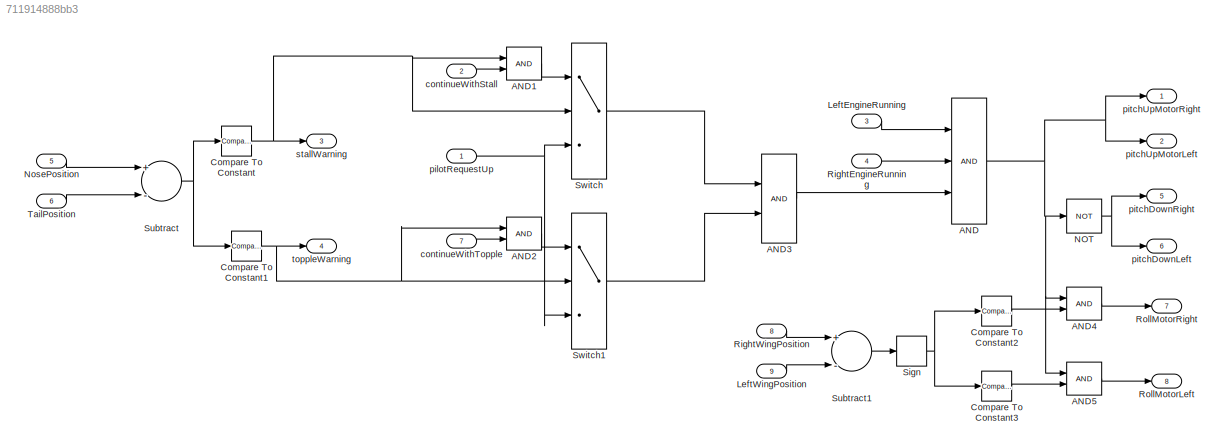
MODEL slx_711914888bb3
KIND model
CONFIG AbsTol = auto
CONFIG EnableMultiTasking = off
CONFIG FixedStep = auto
CONFIG MaxStep = auto
CONFIG MinStep = auto
CONFIG RelTol = 1e-3
CONFIG SampleTimeConstraint = Unconstrained
CONFIG Solver = FixedStepAuto
CONFIG SolverName = FixedStepAuto
CONFIG StartTime = 0.0
CONFIG StopTime = 100
BLOCK [Logic] AND
  AllPortsSameDT = off
  Inputs = 3
  OutDataTypeStr = boolean
  Ports = [3, 1]
BLOCK [Logic] AND1
  AllPortsSameDT = off
  OutDataTypeStr = boolean
  Ports = [2, 1]
BLOCK [Logic] AND2
  AllPortsSameDT = off
  OutDataTypeStr = boolean
  Ports = [2, 1]
BLOCK [Logic] AND3
  AllPortsSameDT = off
  OutDataTypeStr = boolean
  Ports = [2, 1]
BLOCK [Logic] AND4
  AllPortsSameDT = off
  OutDataTypeStr = boolean
  Ports = [2, 1]
BLOCK [Logic] AND5
  AllPortsSameDT = off
  OutDataTypeStr = boolean
  Ports = [2, 1]
BLOCK [Reference] Compare To Constant  REF=simulink/Logic and Bit
Operations/Compare
To Constant
  Ports = [1, 1]
  SourceBlock = simulink/Logic and Bit\nOperations/Compare\nTo Constant
  SourceProductBaseCode = SL
  SourceProductName = Simulink
  SourceType = Compare To Constant
BLOCK [Reference] Compare To Constant1  REF=simulink/Logic and Bit
Operations/Compare
To Constant
  Ports = [1, 1]
  SourceBlock = simulink/Logic and Bit\nOperations/Compare\nTo Constant
  SourceProductBaseCode = SL
  SourceProductName = Simulink
  SourceType = Compare To Constant
BLOCK [Reference] Compare To Constant2  REF=simulink/Logic and Bit
Operations/Compare
To Constant
  Ports = [1, 1]
  SourceBlock = simulink/Logic and Bit\nOperations/Compare\nTo Constant
  SourceProductBaseCode = SL
  SourceProductName = Simulink
  SourceType = Compare To Constant
BLOCK [Reference] Compare To Constant3  REF=simulink/Logic and Bit
Operations/Compare
To Constant
  Ports = [1, 1]
  SourceBlock = simulink/Logic and Bit\nOperations/Compare\nTo Constant
  SourceProductBaseCode = SL
  SourceProductName = Simulink
  SourceType = Compare To Constant
BLOCK [Inport] LeftEngineRunning
  IconDisplay = Port number
  Port = 3
BLOCK [Inport] LeftWingPosition
  IconDisplay = Port number
  Port = 9
BLOCK [Logic] NOT
  AllPortsSameDT = off
  Operator = NOT
  OutDataTypeStr = boolean
  Ports = [1, 1]
BLOCK [Inport] NosePosition
  IconDisplay = Port number
  Port = 5
BLOCK [Inport] RightEngineRunning
  IconDisplay = Port number
  Port = 4
BLOCK [Inport] RightWingPosition
  IconDisplay = Port number
  Port = 8
BLOCK [Outport] RollMotorLeft
  IconDisplay = Port number
  Port = 8
BLOCK [Outport] RollMotorRight
  IconDisplay = Port number
  Port = 7
BLOCK [Signum] Sign
BLOCK [Sum] Subtract
  InputSameDT = off
  Inputs = +-
  OutDataTypeStr = Inherit: Inherit via internal rule
  Ports = [2, 1]
  SaturateOnIntegerOverflow = off
BLOCK [Sum] Subtract1
  InputSameDT = off
  Inputs = +-
  OutDataTypeStr = Inherit: Inherit via internal rule
  Ports = [2, 1]
  SaturateOnIntegerOverflow = off
BLOCK [Switch] Switch
  Criteria = u2 ~= 0
  InputSameDT = off
  SaturateOnIntegerOverflow = off
BLOCK [Switch] Switch1
  Criteria = u2 ~= 0
  InputSameDT = off
  SaturateOnIntegerOverflow = off
BLOCK [Inport] TailPosition
  IconDisplay = Port number
  Port = 6
BLOCK [Inport] continueWithStall
  IconDisplay = Port number
  Port = 2
BLOCK [Inport] continueWithTopple
  IconDisplay = Port number
  Port = 7
BLOCK [Inport] pilotRequestUp
  IconDisplay = Port number
BLOCK [Outport] pitchDownLeft
  IconDisplay = Port number
  Port = 6
BLOCK [Outport] pitchDownRight
  IconDisplay = Port number
  Port = 5
BLOCK [Outport] pitchUpMotorLeft
  IconDisplay = Port number
  Port = 2
BLOCK [Outport] pitchUpMotorRight
  IconDisplay = Port number
BLOCK [Outport] stallWarning
  IconDisplay = Port number
  Port = 3
BLOCK [Outport] toppleWarning
  IconDisplay = Port number
  Port = 4
LINE AND1:1 -> Switch:1
LINE AND2:1 -> Switch1:1
LINE AND3:1 -> AND:3
LINE AND4:1 -> RollMotorRight:1
LINE AND5:1 -> RollMotorLeft:1
NET AND:1 -> AND4:1, AND5:1, NOT:1, pitchUpMotorLeft:1, pitchUpMotorRight:1
NET Compare To Constant1:1 -> AND2:1, Switch1:2, toppleWarning:1
LINE Compare To Constant2:1 -> AND4:2
LINE Compare To Constant3:1 -> AND5:2
NET Compare To Constant:1 -> AND1:1, Switch:2, stallWarning:1
LINE LeftEngineRunning:1 -> AND:1
LINE LeftWingPosition:1 -> Subtract1:2
NET NOT:1 -> pitchDownLeft:1, pitchDownRight:1
LINE NosePosition:1 -> Subtract:1
LINE RightEngineRunning:1 -> AND:2
LINE RightWingPosition:1 -> Subtract1:1
NET Sign:1 -> Compare To Constant2:1, Compare To Constant3:1
LINE Subtract1:1 -> Sign:1
NET Subtract:1 -> Compare To Constant1:1, Compare To Constant:1
LINE Switch1:1 -> AND3:2
LINE Switch:1 -> AND3:1
LINE TailPosition:1 -> Subtract:2
LINE continueWithStall:1 -> AND1:2
LINE continueWithTopple:1 -> AND2:2
NET pilotRequestUp:1 -> Switch1:3, Switch:3
note: NET lines group one-source signal fan-out (src -> all destinations, sorted); 1:1 wires keep LINE
